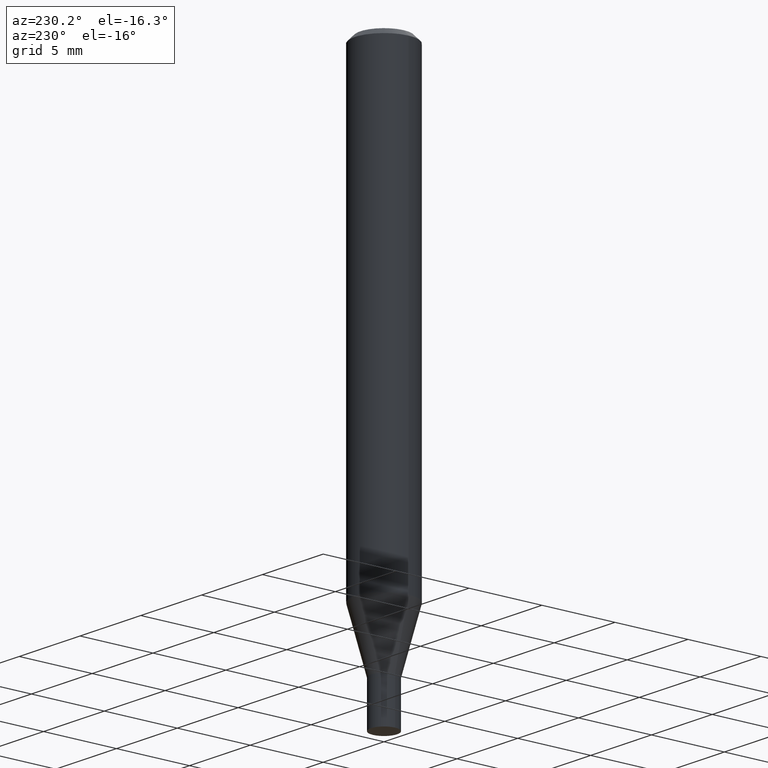
[diagram: clean part render]
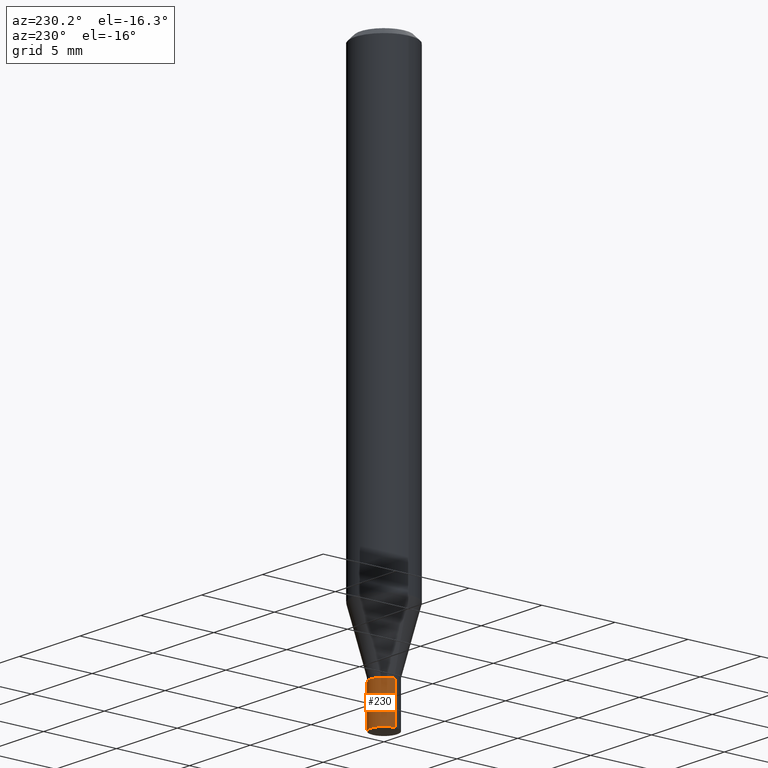
[diagram: same view with one face highlighted and labeled with its STEP entity id]
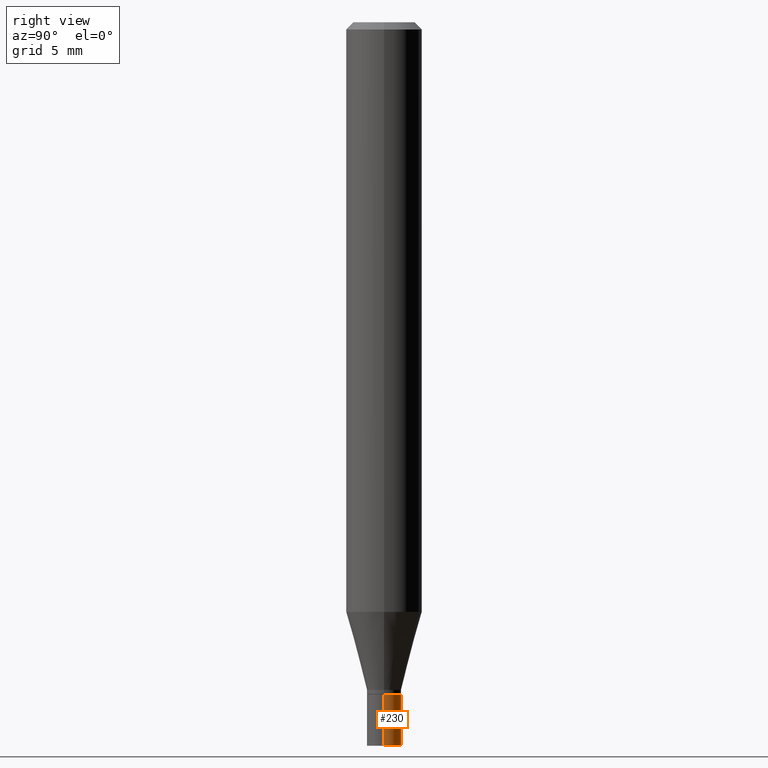
[diagram: same view with one face highlighted and labeled with its STEP entity id]
A machine part, auxiliary view. The second image highlights one B-rep face of the part: STEP entity #230.
A second angle (right view) of the same face is appended — the face is thin or edge-on in the first view.
In plain terms, the highlighted cylindrical surface (edge-blend (fillet) strip) has radius 0.9004 mm, axis along (-0, 0, 1).
Its self-contained STEP definition (entity closure, byte-faithful):
#1 = ORIENTED_EDGE ( 'NONE', *, *, #141, .T. ) ;
#24 = VERTEX_POINT ( 'NONE', #328 ) ;
#25 = FACE_OUTER_BOUND ( 'NONE', #153, .T. ) ;
#26 = DIRECTION ( 'NONE',  ( -2.445468806185136877E-29, 3.491481338843145188E-15, 1.000000000000000000 ) ) ;
#41 = AXIS2_PLACEMENT_3D ( 'NONE', #315, #420, #95 ) ;
#48 = ORIENTED_EDGE ( 'NONE', *, *, #249, .T. ) ;
#57 = DIRECTION ( 'NONE',  ( 1.000000000000000000, -6.982962677686266711E-15, 4.876176775795935793E-29 ) ) ;
#67 = LINE ( 'NONE', #208, #143 ) ;
#95 = DIRECTION ( 'NONE',  ( 1.000000000000000000, -6.982962677686254089E-15, 0.000000000000000000 ) ) ;
#96 = AXIS2_PLACEMENT_3D ( 'NONE', #296, #362, #57 ) ;
#99 = LINE ( 'NONE', #455, #354 ) ;
#118 = CIRCLE ( 'NONE', #271, 0.03545000000000000234 ) ;
#133 = DIRECTION ( 'NONE',  ( -2.445468806185136597E-29, 3.491481338843145583E-15, 1.000000000000000000 ) ) ;
#139 = DIRECTION ( 'NONE',  ( -2.445468806185136877E-29, 3.491481338843145188E-15, 1.000000000000000000 ) ) ;
#141 = EDGE_CURVE ( 'NONE', #452, #411, #118, .T. ) ;
#143 = VECTOR ( 'NONE', #26, 39.37007874015748143 ) ;
#153 = EDGE_LOOP ( 'NONE', ( #1, #48, #440, #248 ) ) ;
#177 = CARTESIAN_POINT ( 'NONE',  ( 3.668203209277704895E-29, -5.237222008264718177E-15, -1.500000000000000222 ) ) ;
#208 = CARTESIAN_POINT ( 'NONE',  ( -0.03545000000000000234, 2.518873998269555325E-16, -1.743762489495364089E-30 ) ) ;
#217 = CARTESIAN_POINT ( 'NONE',  ( -0.03545000000000000234, -4.799762375278250257E-15, -1.393700000000000161 ) ) ;
#228 = CARTESIAN_POINT ( 'NONE',  ( 0.03545000000000000234, -5.484768035188696060E-15, -1.500000000000000222 ) ) ;
#230 = ADVANCED_FACE ( 'NONE', ( #25 ), #317, .T. ) ;
#238 = EDGE_CURVE ( 'NONE', #24, #279, #346, .T. ) ;
#248 = ORIENTED_EDGE ( 'NONE', *, *, #258, .F. ) ;
#249 = EDGE_CURVE ( 'NONE', #411, #279, #67, .T. ) ;
#258 = EDGE_CURVE ( 'NONE', #452, #24, #99, .T. ) ;
#271 = AXIS2_PLACEMENT_3D ( 'NONE', #177, #133, #278 ) ;
#275 = CARTESIAN_POINT ( 'NONE',  ( -0.03545000000000000234, -4.799762375278250257E-15, -1.500000000000000222 ) ) ;
#278 = DIRECTION ( 'NONE',  ( 1.000000000000000000, -6.982962677686254089E-15, 0.000000000000000000 ) ) ;
#279 = VERTEX_POINT ( 'NONE', #217 ) ;
#296 = CARTESIAN_POINT ( 'NONE',  ( 0.000000000000000000, 0.000000000000000000, 0.000000000000000000 ) ) ;
#315 = CARTESIAN_POINT ( 'NONE',  ( 3.408249875180225636E-29, -4.866077541945693107E-15, -1.393700000000000161 ) ) ;
#317 = CYLINDRICAL_SURFACE ( 'NONE', #96, 0.03545000000000000234 ) ;
#328 = CARTESIAN_POINT ( 'NONE',  ( 0.03545000000000000234, -5.113623568869670202E-15, -1.393700000000000161 ) ) ;
#346 = CIRCLE ( 'NONE', #41, 0.03545000000000000234 ) ;
#354 = VECTOR ( 'NONE', #139, 39.37007874015748143 ) ;
#362 = DIRECTION ( 'NONE',  ( -2.445468806185136597E-29, 3.491481338843145583E-15, 1.000000000000000000 ) ) ;
#411 = VERTEX_POINT ( 'NONE', #275 ) ;
#420 = DIRECTION ( 'NONE',  ( -2.445468806185136597E-29, 3.491481338843145583E-15, 1.000000000000000000 ) ) ;
#440 = ORIENTED_EDGE ( 'NONE', *, *, #238, .F. ) ;
#452 = VERTEX_POINT ( 'NONE', #228 ) ;
#455 = CARTESIAN_POINT ( 'NONE',  ( 0.03545000000000000234, -2.475460269239781793E-16, 1.728604667019659440E-30 ) ) ;